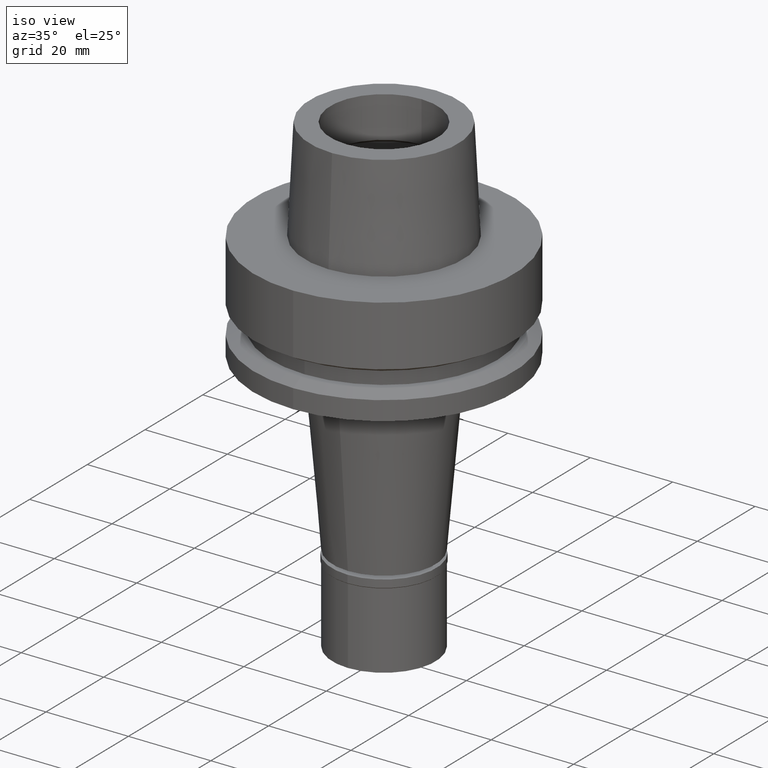
[diagram: clean part render]
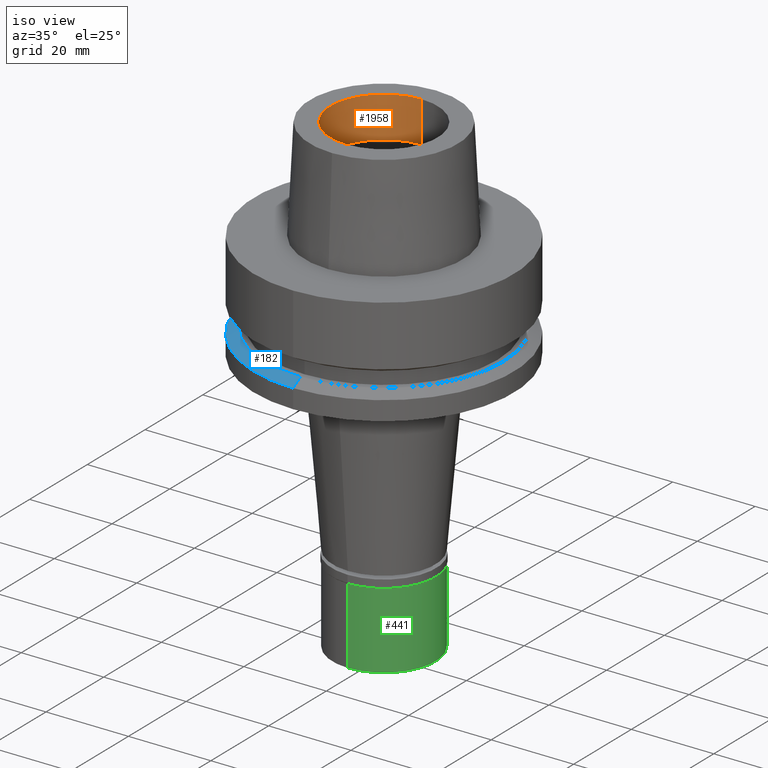
[diagram: same view with three faces highlighted in distinct colors, each labeled with its STEP entity id]
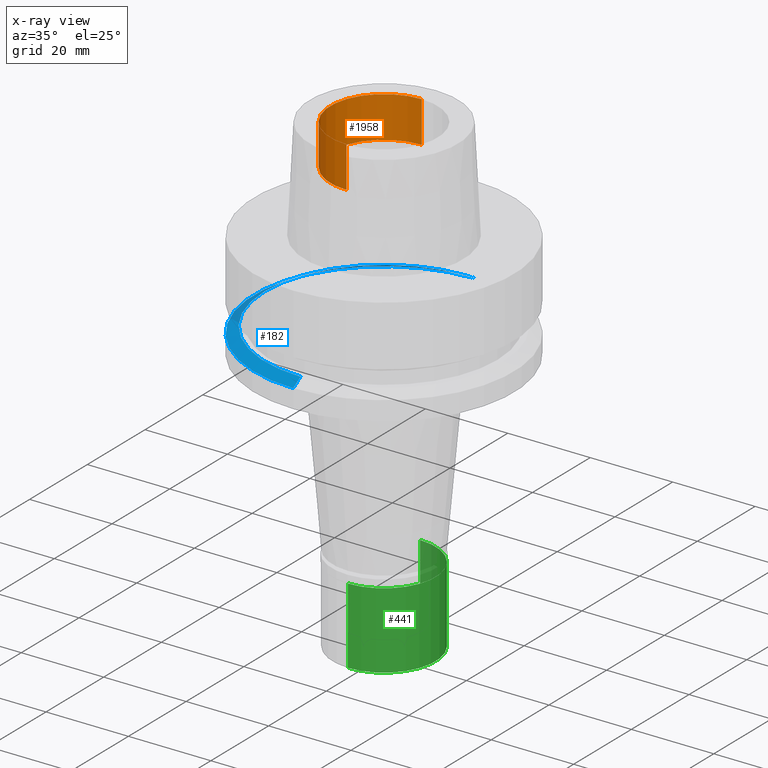
[diagram: x-ray of the same camera — body ghosted, the three highlighted faces saturated]
A machine part, iso view with three faces highlighted in distinct colors.
The next image is the same camera in x-ray (body ghosted, the three faces saturated) — at least one of them is partly hidden behind the body in this view.
Their STEP definitions:

[orange] entity #1958 — the highlighted cylindrical surface (partial cylindrical patch) has radius 13 mm, axis along (0, 0, 1).
#27 = DIRECTION ( 'NONE',  ( 0.0000000000000000000, -9.659541928455000240E-14, 1.000000000000000000 ) ) ;
#135 = CARTESIAN_POINT ( 'NONE',  ( 0.0000000000000000000, 0.0000000000000000000, 25.00000000000000000 ) ) ;
#415 = AXIS2_PLACEMENT_3D ( 'NONE', #2438, #944, #1357 ) ;
#430 = CARTESIAN_POINT ( 'NONE',  ( 0.0000000000000000000, -13.00000000000000000, 14.99602540378000093 ) ) ;
#611 = DIRECTION ( 'NONE',  ( 0.0000000000000000000, 9.659541928455000240E-14, 1.000000000000000000 ) ) ;
#634 = DIRECTION ( 'NONE',  ( 0.0000000000000000000, -1.000000000000000000, 0.0000000000000000000 ) ) ;
#928 = CARTESIAN_POINT ( 'NONE',  ( 0.0000000000000000000, 13.00000000000000000, 14.99602540378000093 ) ) ;
#944 = DIRECTION ( 'NONE',  ( 0.0000000000000000000, 0.0000000000000000000, 1.000000000000000000 ) ) ;
#994 = ORIENTED_EDGE ( 'NONE', *, *, #2370, .F. ) ;
#1139 = CYLINDRICAL_SURFACE ( 'NONE', #415, 13.00000000000000000 ) ;
#1170 = CIRCLE ( 'NONE', #2257, 13.00000000000000000 ) ;
#1307 = AXIS2_PLACEMENT_3D ( 'NONE', #2271, #2507, #634 ) ;
#1324 = EDGE_CURVE ( 'NONE', #1899, #2298, #2539, .T. ) ;
#1357 = DIRECTION ( 'NONE',  ( 0.0000000000000000000, 1.000000000000000000, 0.0000000000000000000 ) ) ;
#1502 = ORIENTED_EDGE ( 'NONE', *, *, #2203, .T. ) ;
#1534 = VECTOR ( 'NONE', #27, 1000.000000000000000 ) ;
#1584 = CARTESIAN_POINT ( 'NONE',  ( 0.0000000000000000000, 13.00000000000000000, 25.00000000000000000 ) ) ;
#1859 = DIRECTION ( 'NONE',  ( 0.0000000000000000000, 1.000000000000000000, 0.0000000000000000000 ) ) ;
#1899 = VERTEX_POINT ( 'NONE', #430 ) ;
#1905 = VECTOR ( 'NONE', #611, 1000.000000000000000 ) ;
#1907 = VERTEX_POINT ( 'NONE', #1950 ) ;
#1950 = CARTESIAN_POINT ( 'NONE',  ( 0.0000000000000000000, -13.00000000000000000, 25.00000000000000000 ) ) ;
#1958 = ADVANCED_FACE ( 'NONE', ( #2036 ), #1139, .F. ) ;
#2036 = FACE_OUTER_BOUND ( 'NONE', #2311, .T. ) ;
#2123 = CARTESIAN_POINT ( 'NONE',  ( 0.0000000000000000000, 13.00000000000000000, 14.99602540378000093 ) ) ;
#2203 = EDGE_CURVE ( 'NONE', #2642, #1907, #1170, .T. ) ;
#2257 = AXIS2_PLACEMENT_3D ( 'NONE', #135, #2342, #1859 ) ;
#2271 = CARTESIAN_POINT ( 'NONE',  ( 0.0000000000000000000, 0.0000000000000000000, 14.99602540378000093 ) ) ;
#2292 = ORIENTED_EDGE ( 'NONE', *, *, #1324, .T. ) ;
#2298 = VERTEX_POINT ( 'NONE', #2123 ) ;
#2311 = EDGE_LOOP ( 'NONE', ( #1502, #994, #2292, #2556 ) ) ;
#2342 = DIRECTION ( 'NONE',  ( 0.0000000000000000000, 0.0000000000000000000, 1.000000000000000000 ) ) ;
#2370 = EDGE_CURVE ( 'NONE', #1899, #1907, #2849, .T. ) ;
#2438 = CARTESIAN_POINT ( 'NONE',  ( 0.0000000000000000000, 0.0000000000000000000, -89.23999999999999488 ) ) ;
#2507 = DIRECTION ( 'NONE',  ( 0.0000000000000000000, 0.0000000000000000000, -1.000000000000000000 ) ) ;
#2539 = CIRCLE ( 'NONE', #1307, 13.00000000000000000 ) ;
#2548 = EDGE_CURVE ( 'NONE', #2298, #2642, #2705, .T. ) ;
#2556 = ORIENTED_EDGE ( 'NONE', *, *, #2548, .T. ) ;
#2642 = VERTEX_POINT ( 'NONE', #1584 ) ;
#2705 = LINE ( 'NONE', #928, #1534 ) ;
#2838 = CARTESIAN_POINT ( 'NONE',  ( 0.0000000000000000000, -13.00000000000000000, 14.99602540378000093 ) ) ;
#2849 = LINE ( 'NONE', #2838, #1905 ) ;

[blue] entity #182 — the highlighted conical surface has half-angle 60 deg.
#2 = VECTOR ( 'NONE', #33, 1000.000000000000000 ) ;
#33 = DIRECTION ( 'NONE',  ( 0.0000000000000000000, 0.8660254037843856390, -0.5000000000000918154 ) ) ;
#43 = CIRCLE ( 'NONE', #2391, 28.89759526419000224 ) ;
#182 = ADVANCED_FACE ( 'NONE', ( #955 ), #2362, .T. ) ;
#244 = CARTESIAN_POINT ( 'NONE',  ( 0.0000000000000000000, 28.89759526419000224, -19.87500000000000000 ) ) ;
#248 = CARTESIAN_POINT ( 'NONE',  ( 0.0000000000000000000, -28.89759526419000224, -19.87500000000000000 ) ) ;
#260 = VERTEX_POINT ( 'NONE', #440 ) ;
#368 = CIRCLE ( 'NONE', #1446, 31.50000000000000000 ) ;
#389 = DIRECTION ( 'NONE',  ( 0.0000000000000000000, 0.0000000000000000000, -1.000000000000000000 ) ) ;
#440 = CARTESIAN_POINT ( 'NONE',  ( 0.0000000000000000000, -28.89759526419000224, -19.87500000000000000 ) ) ;
#483 = EDGE_CURVE ( 'NONE', #260, #613, #542, .T. ) ;
#542 = LINE ( 'NONE', #248, #2357 ) ;
#584 = CARTESIAN_POINT ( 'NONE',  ( 0.0000000000000000000, 0.0000000000000000000, -21.37749907476000288 ) ) ;
#610 = CARTESIAN_POINT ( 'NONE',  ( 0.0000000000000000000, 0.0000000000000000000, -19.87500000000000000 ) ) ;
#613 = VERTEX_POINT ( 'NONE', #2800 ) ;
#623 = DIRECTION ( 'NONE',  ( 0.0000000000000000000, 0.0000000000000000000, -1.000000000000000000 ) ) ;
#780 = EDGE_CURVE ( 'NONE', #1246, #2639, #2663, .T. ) ;
#801 = DIRECTION ( 'NONE',  ( 0.0000000000000000000, -1.000000000000000000, 0.0000000000000000000 ) ) ;
#955 = FACE_OUTER_BOUND ( 'NONE', #1978, .T. ) ;
#1022 = DIRECTION ( 'NONE',  ( 0.0000000000000000000, -1.000000000000000000, 0.0000000000000000000 ) ) ;
#1176 = AXIS2_PLACEMENT_3D ( 'NONE', #1835, #389, #1022 ) ;
#1246 = VERTEX_POINT ( 'NONE', #2004 ) ;
#1301 = DIRECTION ( 'NONE',  ( 0.0000000000000000000, -1.000000000000000000, 0.0000000000000000000 ) ) ;
#1349 = EDGE_CURVE ( 'NONE', #260, #1246, #43, .T. ) ;
#1446 = AXIS2_PLACEMENT_3D ( 'NONE', #584, #2796, #801 ) ;
#1595 = ORIENTED_EDGE ( 'NONE', *, *, #1349, .T. ) ;
#1835 = CARTESIAN_POINT ( 'NONE',  ( 0.0000000000000000000, 0.0000000000000000000, -20.62624953738000144 ) ) ;
#1927 = ORIENTED_EDGE ( 'NONE', *, *, #483, .F. ) ;
#1978 = EDGE_LOOP ( 'NONE', ( #2743, #1927, #1595, #2503 ) ) ;
#2004 = CARTESIAN_POINT ( 'NONE',  ( 0.0000000000000000000, 28.89759526419000224, -19.87500000000000000 ) ) ;
#2034 = CARTESIAN_POINT ( 'NONE',  ( 0.0000000000000000000, 31.50000000000000000, -21.37749907476000288 ) ) ;
#2059 = DIRECTION ( 'NONE',  ( 0.0000000000000000000, -0.8660254037843856390, -0.5000000000000918154 ) ) ;
#2144 = EDGE_CURVE ( 'NONE', #613, #2639, #368, .T. ) ;
#2357 = VECTOR ( 'NONE', #2059, 1000.000000000000000 ) ;
#2362 = CONICAL_SURFACE ( 'NONE', #1176, 30.19879763209999979, 1.047197551196400456 ) ;
#2391 = AXIS2_PLACEMENT_3D ( 'NONE', #610, #623, #1301 ) ;
#2503 = ORIENTED_EDGE ( 'NONE', *, *, #780, .T. ) ;
#2639 = VERTEX_POINT ( 'NONE', #2034 ) ;
#2663 = LINE ( 'NONE', #244, #2 ) ;
#2743 = ORIENTED_EDGE ( 'NONE', *, *, #2144, .F. ) ;
#2796 = DIRECTION ( 'NONE',  ( 0.0000000000000000000, 0.0000000000000000000, -1.000000000000000000 ) ) ;
#2800 = CARTESIAN_POINT ( 'NONE',  ( 0.0000000000000000000, -31.50000000000000000, -21.37749907476000288 ) ) ;

[green] entity #441 — the highlighted cylindrical surface (partial cylindrical patch) has radius 12.5 mm, axis along (0, 0, -1).
#20 = ORIENTED_EDGE ( 'NONE', *, *, #799, .T. ) ;
#70 = DIRECTION ( 'NONE',  ( 0.0000000000000000000, 0.0000000000000000000, -1.000000000000000000 ) ) ;
#170 = EDGE_CURVE ( 'NONE', #937, #426, #1186, .T. ) ;
#305 = CARTESIAN_POINT ( 'NONE',  ( 0.0000000000000000000, 12.50000000000000000, -20.50000000000000000 ) ) ;
#367 = CIRCLE ( 'NONE', #1405, 12.50000000000000000 ) ;
#378 = ORIENTED_EDGE ( 'NONE', *, *, #170, .F. ) ;
#426 = VERTEX_POINT ( 'NONE', #305 ) ;
#441 = ADVANCED_FACE ( 'NONE', ( #2031 ), #2011, .T. ) ;
#686 = CARTESIAN_POINT ( 'NONE',  ( 0.0000000000000000000, -12.50000000000000000, -20.50000000000000000 ) ) ;
#700 = LINE ( 'NONE', #1151, #1805 ) ;
#731 = AXIS2_PLACEMENT_3D ( 'NONE', #873, #2612, #2208 ) ;
#741 = CARTESIAN_POINT ( 'NONE',  ( 0.0000000000000000000, 0.0000000000000000000, -20.50000000000000000 ) ) ;
#744 = AXIS2_PLACEMENT_3D ( 'NONE', #923, #1869, #1806 ) ;
#799 = EDGE_CURVE ( 'NONE', #2621, #426, #367, .T. ) ;
#873 = CARTESIAN_POINT ( 'NONE',  ( 0.0000000000000000000, 0.0000000000000000000, -2.000000000000000000 ) ) ;
#923 = CARTESIAN_POINT ( 'NONE',  ( 0.0000000000000000000, 0.0000000000000000000, 0.0000000000000000000 ) ) ;
#937 = VERTEX_POINT ( 'NONE', #1465 ) ;
#1151 = CARTESIAN_POINT ( 'NONE',  ( 0.0000000000000000000, -12.50000000000000000, -2.000000000000000000 ) ) ;
#1175 = ORIENTED_EDGE ( 'NONE', *, *, #2687, .T. ) ;
#1186 = LINE ( 'NONE', #2049, #2553 ) ;
#1405 = AXIS2_PLACEMENT_3D ( 'NONE', #741, #2086, #2505 ) ;
#1465 = CARTESIAN_POINT ( 'NONE',  ( 0.0000000000000000000, 12.50000000000000000, -2.000000000000000000 ) ) ;
#1526 = CARTESIAN_POINT ( 'NONE',  ( 0.0000000000000000000, -12.50000000000000000, -2.000000000000000000 ) ) ;
#1756 = EDGE_CURVE ( 'NONE', #937, #1912, #2396, .T. ) ;
#1805 = VECTOR ( 'NONE', #2047, 1000.000000000000000 ) ;
#1806 = DIRECTION ( 'NONE',  ( 0.0000000000000000000, -1.000000000000000000, 0.0000000000000000000 ) ) ;
#1869 = DIRECTION ( 'NONE',  ( 0.0000000000000000000, 0.0000000000000000000, -1.000000000000000000 ) ) ;
#1912 = VERTEX_POINT ( 'NONE', #1526 ) ;
#2011 = CYLINDRICAL_SURFACE ( 'NONE', #744, 12.50000000000000000 ) ;
#2031 = FACE_OUTER_BOUND ( 'NONE', #2735, .T. ) ;
#2047 = DIRECTION ( 'NONE',  ( 0.0000000000000000000, 0.0000000000000000000, -1.000000000000000000 ) ) ;
#2049 = CARTESIAN_POINT ( 'NONE',  ( 0.0000000000000000000, 12.50000000000000000, -2.000000000000000000 ) ) ;
#2086 = DIRECTION ( 'NONE',  ( 0.0000000000000000000, 0.0000000000000000000, 1.000000000000000000 ) ) ;
#2208 = DIRECTION ( 'NONE',  ( 0.0000000000000000000, 1.000000000000000000, 0.0000000000000000000 ) ) ;
#2396 = CIRCLE ( 'NONE', #731, 12.50000000000000000 ) ;
#2505 = DIRECTION ( 'NONE',  ( 0.0000000000000000000, -1.000000000000000000, 0.0000000000000000000 ) ) ;
#2533 = ORIENTED_EDGE ( 'NONE', *, *, #1756, .T. ) ;
#2553 = VECTOR ( 'NONE', #70, 1000.000000000000000 ) ;
#2612 = DIRECTION ( 'NONE',  ( 0.0000000000000000000, 0.0000000000000000000, -1.000000000000000000 ) ) ;
#2621 = VERTEX_POINT ( 'NONE', #686 ) ;
#2687 = EDGE_CURVE ( 'NONE', #1912, #2621, #700, .T. ) ;
#2735 = EDGE_LOOP ( 'NONE', ( #2533, #1175, #20, #378 ) ) ;